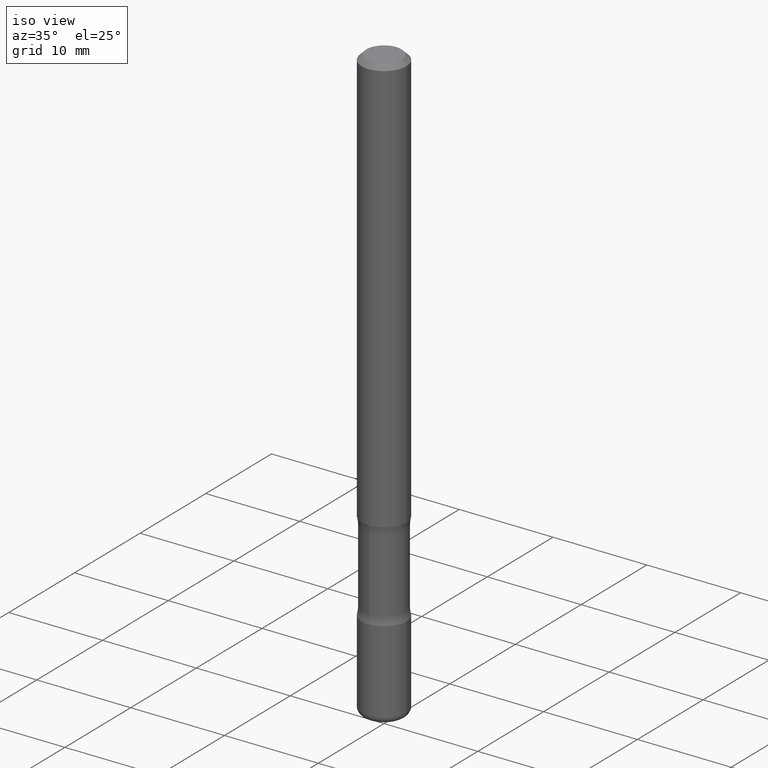
[diagram: clean part render]
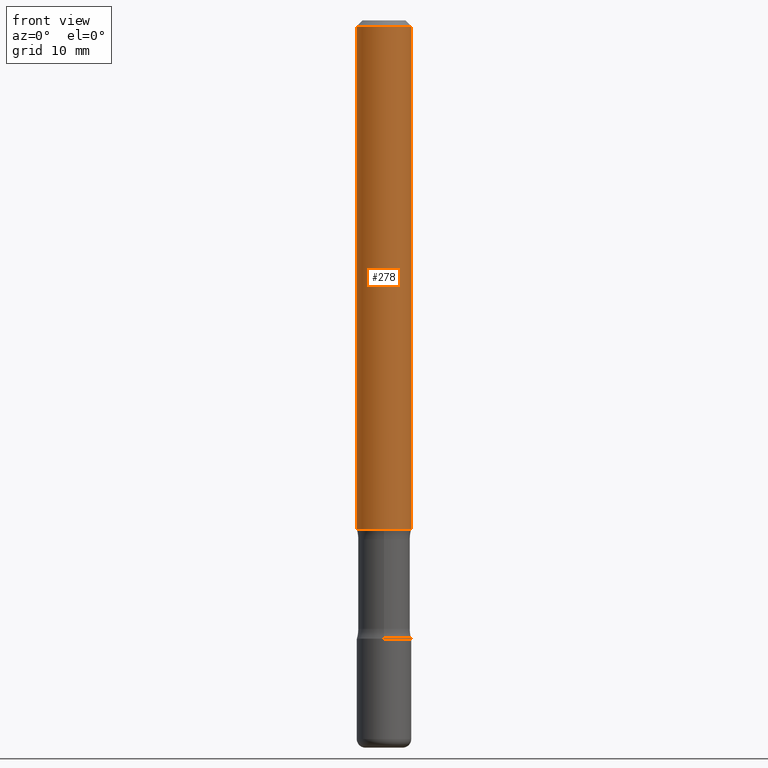
[diagram: tour spotlight — one face highlighted and labeled with its STEP entity id]
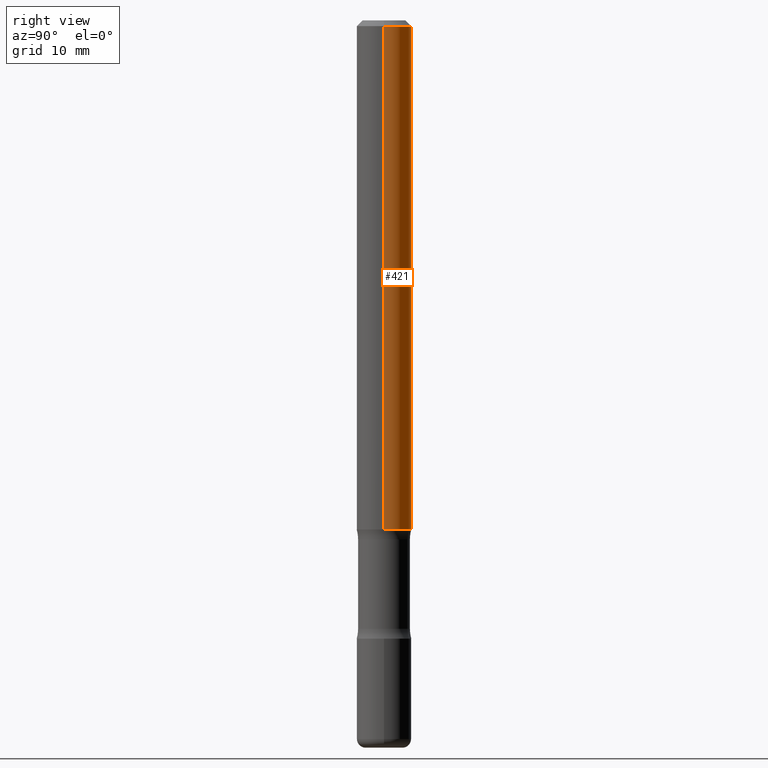
[diagram: tour spotlight — one face highlighted and labeled with its STEP entity id]
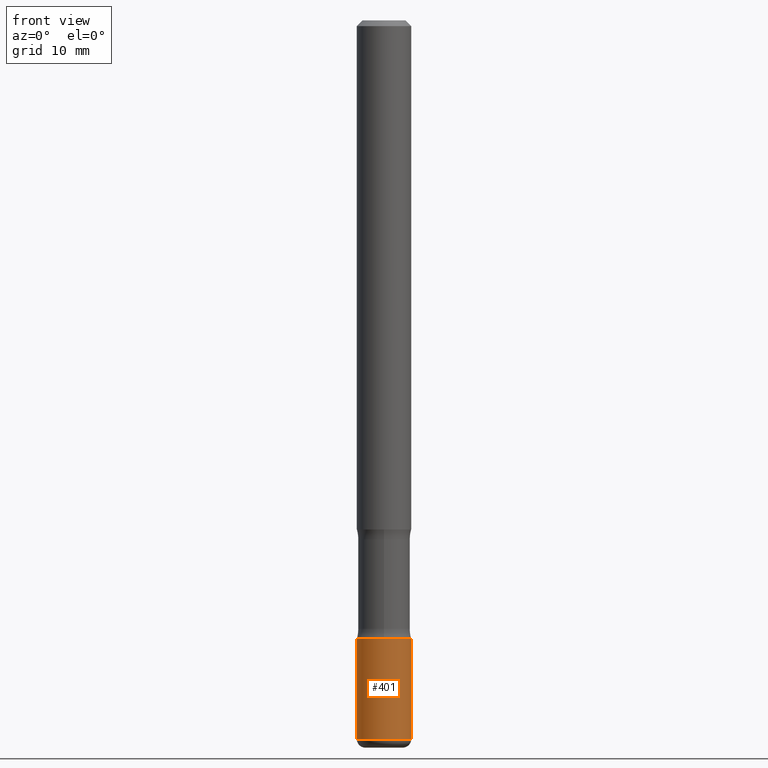
[diagram: tour spotlight — one face highlighted and labeled with its STEP entity id]
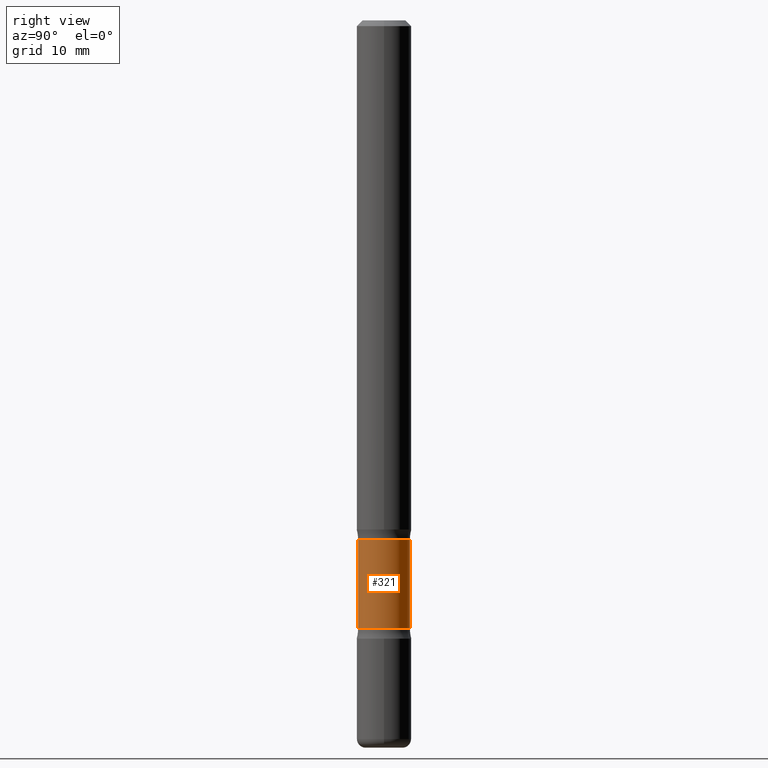
[diagram: tour spotlight — one face highlighted and labeled with its STEP entity id]
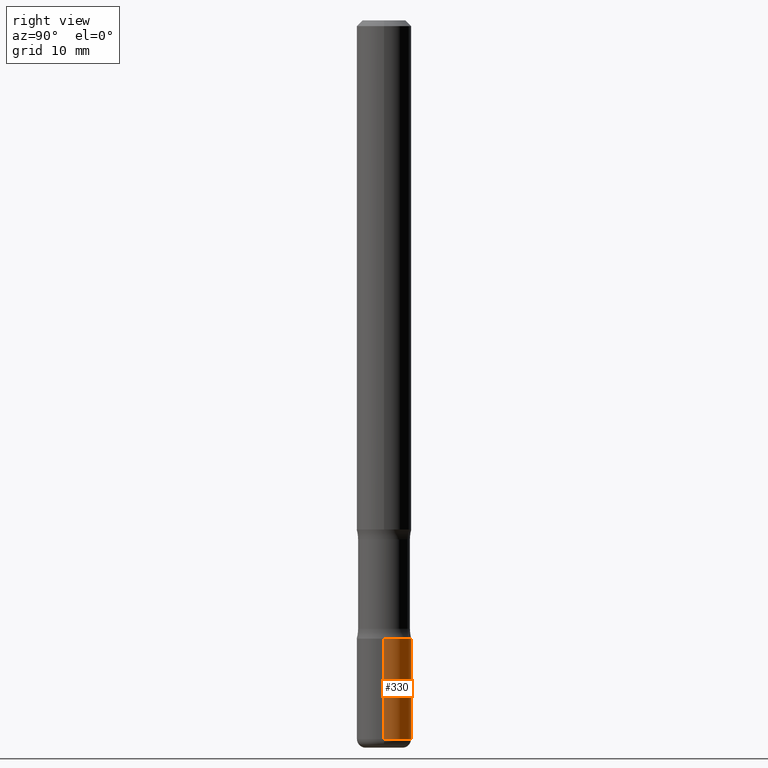
[diagram: tour spotlight — one face highlighted and labeled with its STEP entity id]
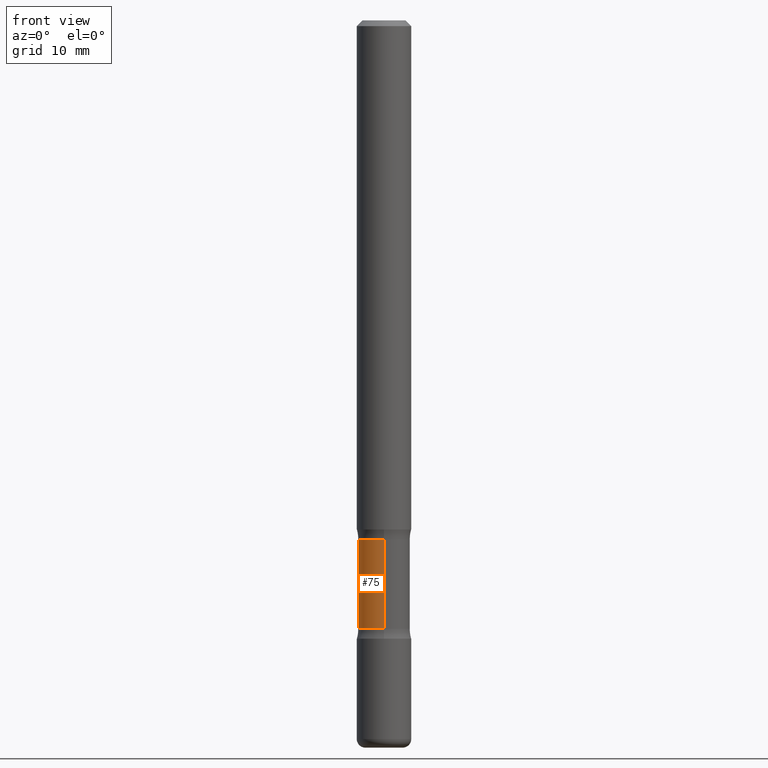
[diagram: tour spotlight — one face highlighted and labeled with its STEP entity id]
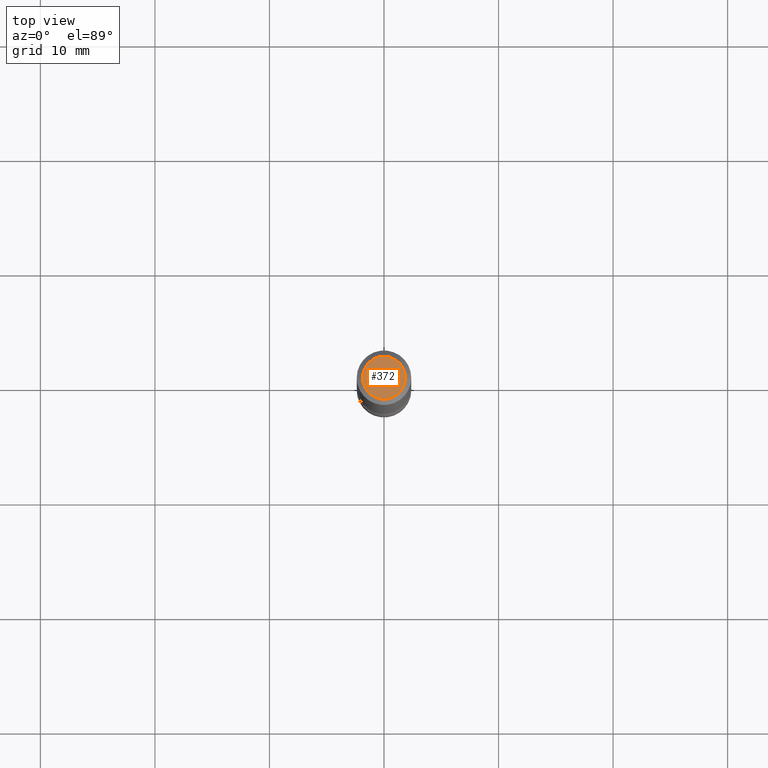
[diagram: tour spotlight — one face highlighted and labeled with its STEP entity id]
A machine part: a face-by-face anatomy tour. The part has 20 B-rep faces; the first image is the clean iso view, then the 7 largest visible faces are spotlighted one at a time (largest first), each with its STEP entity span.

Face 1 — front view, entity #278. In plain terms, the highlighted cylindrical surface (edge-blend (fillet) strip) has radius 2.3812 mm, axis along (-0, 0, 1).
Definition (entity closure, byte-faithful):
#7 = VERTEX_POINT ( 'NONE', #197 ) ;
#13 = CARTESIAN_POINT ( 'NONE',  ( -0.09374999999999981959, 5.848231242562233185E-16, -0.02000000000000001776 ) ) ;
#27 = EDGE_LOOP ( 'NONE', ( #222, #38, #517, #162 ) ) ;
#37 = CARTESIAN_POINT ( 'NONE',  ( 4.279570410823988484E-29, -6.110092342975504671E-15, -1.750000000000000000 ) ) ;
#38 = ORIENTED_EDGE ( 'NONE', *, *, #51, .T. ) ;
#51 = EDGE_CURVE ( 'NONE', #525, #7, #329, .T. ) ;
#60 = DIRECTION ( 'NONE',  ( -2.445468806185136597E-29, 3.491481338843145583E-15, 1.000000000000000000 ) ) ;
#104 = EDGE_CURVE ( 'NONE', #7, #237, #118, .T. ) ;
#118 = LINE ( 'NONE', #204, #225 ) ;
#133 = DIRECTION ( 'NONE',  ( 1.000000000000000000, -6.982962677686269866E-15, 0.000000000000000000 ) ) ;
#136 = EDGE_CURVE ( 'NONE', #483, #237, #405, .T. ) ;
#137 = CARTESIAN_POINT ( 'NONE',  ( 0.09374999999999981959, -7.130013140679428044E-16, -0.02000000000000001776 ) ) ;
#141 = FACE_OUTER_BOUND ( 'NONE', #27, .T. ) ;
#162 = ORIENTED_EDGE ( 'NONE', *, *, #136, .F. ) ;
#164 = DIRECTION ( 'NONE',  ( -2.445468806185136597E-29, 3.491481338843145583E-15, 1.000000000000000000 ) ) ;
#196 = AXIS2_PLACEMENT_3D ( 'NONE', #37, #236, #133 ) ;
#197 = CARTESIAN_POINT ( 'NONE',  ( 0.09375000000000004163, -6.764745094008592175E-15, -1.750000000000000000 ) ) ;
#204 = CARTESIAN_POINT ( 'NONE',  ( 0.09374999999999991673, -6.546527510330869125E-16, 4.571415727308685602E-30 ) ) ;
#222 = ORIENTED_EDGE ( 'NONE', *, *, #515, .F. ) ;
#223 = AXIS2_PLACEMENT_3D ( 'NONE', #512, #60, #558 ) ;
#225 = VECTOR ( 'NONE', #426, 39.37007874015748143 ) ;
#236 = DIRECTION ( 'NONE',  ( -2.445468806185136597E-29, 3.491481338843145583E-15, 1.000000000000000000 ) ) ;
#237 = VERTEX_POINT ( 'NONE', #137 ) ;
#278 = ADVANCED_FACE ( 'NONE', ( #141 ), #287, .T. ) ;
#286 = CARTESIAN_POINT ( 'NONE',  ( -0.09374999999999991673, 6.661338147750933326E-16, -4.611501647113969791E-30 ) ) ;
#287 = CYLINDRICAL_SURFACE ( 'NONE', #223, 0.09374999999999991673 ) ;
#329 = CIRCLE ( 'NONE', #196, 0.09375000000000004163 ) ;
#387 = CARTESIAN_POINT ( 'NONE',  ( -0.09375000000000004163, -2.423827170101085722E-15, -1.750000000000000000 ) ) ;
#405 = CIRCLE ( 'NONE', #509, 0.09374999999999981959 ) ;
#425 = DIRECTION ( 'NONE',  ( -2.445468806185136877E-29, 3.491481338843145188E-15, 1.000000000000000000 ) ) ;
#426 = DIRECTION ( 'NONE',  ( -2.445468806185136877E-29, 3.491481338843145188E-15, 1.000000000000000000 ) ) ;
#463 = CARTESIAN_POINT ( 'NONE',  ( 4.890937612370276662E-31, -6.982962677686296539E-17, -0.02000000000000001776 ) ) ;
#472 = LINE ( 'NONE', #286, #481 ) ;
#481 = VECTOR ( 'NONE', #425, 39.37007874015748143 ) ;
#483 = VERTEX_POINT ( 'NONE', #13 ) ;
#503 = DIRECTION ( 'NONE',  ( 1.000000000000000000, -6.982962677686267499E-15, 0.000000000000000000 ) ) ;
#509 = AXIS2_PLACEMENT_3D ( 'NONE', #463, #164, #503 ) ;
#512 = CARTESIAN_POINT ( 'NONE',  ( 0.000000000000000000, 0.000000000000000000, 0.000000000000000000 ) ) ;
#515 = EDGE_CURVE ( 'NONE', #525, #483, #472, .T. ) ;
#517 = ORIENTED_EDGE ( 'NONE', *, *, #104, .T. ) ;
#525 = VERTEX_POINT ( 'NONE', #387 ) ;
#558 = DIRECTION ( 'NONE',  ( 1.000000000000000000, -6.982962677686266711E-15, 4.876176775795935793E-29 ) ) ;

Face 2 — right view, entity #421. In plain terms, the highlighted cylindrical surface (edge-blend (fillet) strip) has radius 2.3812 mm, axis along (-0, 0, 1).
Definition (entity closure, byte-faithful):
#7 = VERTEX_POINT ( 'NONE', #197 ) ;
#13 = CARTESIAN_POINT ( 'NONE',  ( -0.09374999999999981959, 5.848231242562233185E-16, -0.02000000000000001776 ) ) ;
#21 = CIRCLE ( 'NONE', #552, 0.09374999999999981959 ) ;
#80 = DIRECTION ( 'NONE',  ( 1.000000000000000000, -6.982962677686269866E-15, 0.000000000000000000 ) ) ;
#81 = CIRCLE ( 'NONE', #403, 0.09375000000000004163 ) ;
#98 = CYLINDRICAL_SURFACE ( 'NONE', #496, 0.09374999999999991673 ) ;
#104 = EDGE_CURVE ( 'NONE', #7, #237, #118, .T. ) ;
#118 = LINE ( 'NONE', #204, #225 ) ;
#119 = DIRECTION ( 'NONE',  ( -2.445468806185136597E-29, 3.491481338843145583E-15, 1.000000000000000000 ) ) ;
#127 = ORIENTED_EDGE ( 'NONE', *, *, #488, .T. ) ;
#137 = CARTESIAN_POINT ( 'NONE',  ( 0.09374999999999981959, -7.130013140679428044E-16, -0.02000000000000001776 ) ) ;
#150 = DIRECTION ( 'NONE',  ( 1.000000000000000000, -6.982962677686267499E-15, 0.000000000000000000 ) ) ;
#197 = CARTESIAN_POINT ( 'NONE',  ( 0.09375000000000004163, -6.764745094008592175E-15, -1.750000000000000000 ) ) ;
#204 = CARTESIAN_POINT ( 'NONE',  ( 0.09374999999999991673, -6.546527510330869125E-16, 4.571415727308685602E-30 ) ) ;
#225 = VECTOR ( 'NONE', #426, 39.37007874015748143 ) ;
#237 = VERTEX_POINT ( 'NONE', #137 ) ;
#286 = CARTESIAN_POINT ( 'NONE',  ( -0.09374999999999991673, 6.661338147750933326E-16, -4.611501647113969791E-30 ) ) ;
#312 = EDGE_LOOP ( 'NONE', ( #127, #340, #363, #542 ) ) ;
#340 = ORIENTED_EDGE ( 'NONE', *, *, #515, .T. ) ;
#349 = CARTESIAN_POINT ( 'NONE',  ( 4.279570410823988484E-29, -6.110092342975504671E-15, -1.750000000000000000 ) ) ;
#362 = DIRECTION ( 'NONE',  ( -2.445468806185136597E-29, 3.491481338843145583E-15, 1.000000000000000000 ) ) ;
#363 = ORIENTED_EDGE ( 'NONE', *, *, #438, .F. ) ;
#371 = FACE_OUTER_BOUND ( 'NONE', #312, .T. ) ;
#387 = CARTESIAN_POINT ( 'NONE',  ( -0.09375000000000004163, -2.423827170101085722E-15, -1.750000000000000000 ) ) ;
#395 = DIRECTION ( 'NONE',  ( 1.000000000000000000, -6.982962677686266711E-15, 4.876176775795935793E-29 ) ) ;
#403 = AXIS2_PLACEMENT_3D ( 'NONE', #349, #119, #80 ) ;
#411 = CARTESIAN_POINT ( 'NONE',  ( 0.000000000000000000, 0.000000000000000000, 0.000000000000000000 ) ) ;
#421 = ADVANCED_FACE ( 'NONE', ( #371 ), #98, .T. ) ;
#425 = DIRECTION ( 'NONE',  ( -2.445468806185136877E-29, 3.491481338843145188E-15, 1.000000000000000000 ) ) ;
#426 = DIRECTION ( 'NONE',  ( -2.445468806185136877E-29, 3.491481338843145188E-15, 1.000000000000000000 ) ) ;
#438 = EDGE_CURVE ( 'NONE', #237, #483, #21, .T. ) ;
#472 = LINE ( 'NONE', #286, #481 ) ;
#481 = VECTOR ( 'NONE', #425, 39.37007874015748143 ) ;
#483 = VERTEX_POINT ( 'NONE', #13 ) ;
#488 = EDGE_CURVE ( 'NONE', #7, #525, #81, .T. ) ;
#490 = DIRECTION ( 'NONE',  ( -2.445468806185136597E-29, 3.491481338843145583E-15, 1.000000000000000000 ) ) ;
#496 = AXIS2_PLACEMENT_3D ( 'NONE', #411, #362, #395 ) ;
#515 = EDGE_CURVE ( 'NONE', #525, #483, #472, .T. ) ;
#525 = VERTEX_POINT ( 'NONE', #387 ) ;
#537 = CARTESIAN_POINT ( 'NONE',  ( 4.890937612370276662E-31, -6.982962677686296539E-17, -0.02000000000000001776 ) ) ;
#542 = ORIENTED_EDGE ( 'NONE', *, *, #104, .F. ) ;
#552 = AXIS2_PLACEMENT_3D ( 'NONE', #537, #490, #150 ) ;

Face 3 — front view, entity #401. In plain terms, the highlighted cylindrical surface (edge-blend (fillet) strip) has radius 2.3813 mm, axis along (-0, 0, 1).
Definition (entity closure, byte-faithful):
#1 = FACE_OUTER_BOUND ( 'NONE', #407, .T. ) ;
#32 = ORIENTED_EDGE ( 'NONE', *, *, #382, .F. ) ;
#42 = ORIENTED_EDGE ( 'NONE', *, *, #201, .T. ) ;
#43 = AXIS2_PLACEMENT_3D ( 'NONE', #431, #89, #341 ) ;
#66 = DIRECTION ( 'NONE',  ( -2.445468806185136877E-29, 3.491481338843145188E-15, 1.000000000000000000 ) ) ;
#67 = ORIENTED_EDGE ( 'NONE', *, *, #109, .F. ) ;
#79 = LINE ( 'NONE', #252, #393 ) ;
#89 = DIRECTION ( 'NONE',  ( -2.445468806185136597E-29, 3.491481338843145583E-15, 1.000000000000000000 ) ) ;
#97 = DIRECTION ( 'NONE',  ( 1.000000000000000000, -6.982962677686265922E-15, 0.000000000000000000 ) ) ;
#106 = CARTESIAN_POINT ( 'NONE',  ( -0.09374999999999994449, -7.957825092167479227E-15, -2.470000000000000639 ) ) ;
#109 = EDGE_CURVE ( 'NONE', #322, #217, #79, .T. ) ;
#130 = AXIS2_PLACEMENT_3D ( 'NONE', #216, #396, #97 ) ;
#149 = DIRECTION ( 'NONE',  ( -2.445468806185136597E-29, 3.491481338843145583E-15, 1.000000000000000000 ) ) ;
#154 = ORIENTED_EDGE ( 'NONE', *, *, #375, .T. ) ;
#171 = CARTESIAN_POINT ( 'NONE',  ( 0.09375000000000005551, -6.546527510330878985E-16, 4.571415727308692608E-30 ) ) ;
#174 = CARTESIAN_POINT ( 'NONE',  ( -0.09375000000000002776, -7.355544561217034463E-15, -2.125000000000000000 ) ) ;
#199 = AXIS2_PLACEMENT_3D ( 'NONE', #357, #149, #534 ) ;
#201 = EDGE_CURVE ( 'NONE', #495, #246, #290, .T. ) ;
#211 = DIRECTION ( 'NONE',  ( -2.445468806185136877E-29, 3.491481338843145188E-15, 1.000000000000000000 ) ) ;
#212 = CIRCLE ( 'NONE', #130, 0.09375000000000009714 ) ;
#216 = CARTESIAN_POINT ( 'NONE',  ( 6.040307951277289098E-29, -8.623958906942573151E-15, -2.470000000000000639 ) ) ;
#217 = VERTEX_POINT ( 'NONE', #174 ) ;
#246 = VERTEX_POINT ( 'NONE', #388 ) ;
#252 = CARTESIAN_POINT ( 'NONE',  ( -0.09375000000000005551, 6.661338147750943187E-16, -4.611501647113976798E-30 ) ) ;
#290 = LINE ( 'NONE', #171, #352 ) ;
#322 = VERTEX_POINT ( 'NONE', #106 ) ;
#341 = DIRECTION ( 'NONE',  ( 1.000000000000000000, -6.982962677686266711E-15, 4.876176775795935793E-29 ) ) ;
#352 = VECTOR ( 'NONE', #66, 39.37007874015748143 ) ;
#357 = CARTESIAN_POINT ( 'NONE',  ( 5.196621213143415268E-29, -7.419397845041685201E-15, -2.125000000000000000 ) ) ;
#375 = EDGE_CURVE ( 'NONE', #322, #495, #212, .T. ) ;
#382 = EDGE_CURVE ( 'NONE', #217, #246, #452, .T. ) ;
#388 = CARTESIAN_POINT ( 'NONE',  ( 0.09375000000000002776, -8.074050596074771916E-15, -2.125000000000000000 ) ) ;
#393 = VECTOR ( 'NONE', #211, 39.37007874015748143 ) ;
#396 = DIRECTION ( 'NONE',  ( -2.445468806185136597E-29, 3.491481338843145583E-15, 1.000000000000000000 ) ) ;
#401 = ADVANCED_FACE ( 'NONE', ( #1 ), #518, .T. ) ;
#407 = EDGE_LOOP ( 'NONE', ( #67, #154, #42, #32 ) ) ;
#431 = CARTESIAN_POINT ( 'NONE',  ( 0.000000000000000000, 0.000000000000000000, 0.000000000000000000 ) ) ;
#452 = CIRCLE ( 'NONE', #199, 0.09375000000000002776 ) ;
#495 = VERTEX_POINT ( 'NONE', #507 ) ;
#507 = CARTESIAN_POINT ( 'NONE',  ( 0.09374999999999994449, -9.278611657975658288E-15, -2.470000000000000639 ) ) ;
#518 = CYLINDRICAL_SURFACE ( 'NONE', #43, 0.09375000000000005551 ) ;
#534 = DIRECTION ( 'NONE',  ( 1.000000000000000000, -6.982962677686270655E-15, 0.000000000000000000 ) ) ;

Face 4 — right view, entity #321. In plain terms, the highlighted cylindrical surface (edge-blend (fillet) strip) has radius 2.2622 mm, axis along (0, -0, -1).
Definition (entity closure, byte-faithful):
#9 = DIRECTION ( 'NONE',  ( 6.982962677686265133E-15, 1.000000000000000000, -6.134676196298701332E-15 ) ) ;
#16 = DIRECTION ( 'NONE',  ( 2.553476385947133355E-29, -3.336808337214295667E-15, -1.000000000000000000 ) ) ;
#34 = EDGE_LOOP ( 'NONE', ( #456, #471, #324, #356 ) ) ;
#69 = VERTEX_POINT ( 'NONE', #298 ) ;
#78 = CARTESIAN_POINT ( 'NONE',  ( 5.110032292609207884E-29, -7.306245973522905960E-15, -2.091089789977795821 ) ) ;
#87 = FACE_OUTER_BOUND ( 'NONE', #34, .T. ) ;
#91 = AXIS2_PLACEMENT_3D ( 'NONE', #410, #16, #317 ) ;
#96 = CARTESIAN_POINT ( 'NONE',  ( 6.219201134814836160E-16, 0.08906249999999261979, -2.091089789977795821 ) ) ;
#173 = CARTESIAN_POINT ( 'NONE',  ( -6.270923951087611034E-16, -0.08906250000000623390, -1.783910210022204401 ) ) ;
#178 = CIRCLE ( 'NONE', #91, 0.08906249999999994726 ) ;
#180 = CARTESIAN_POINT ( 'NONE',  ( 6.154174857873591467E-29, -8.670700971497045879E-15, -2.500000000000000000 ) ) ;
#206 = LINE ( 'NONE', #383, #323 ) ;
#228 = DIRECTION ( 'NONE',  ( 2.553476385947133355E-29, -3.336808337214295667E-15, -1.000000000000000000 ) ) ;
#233 = DIRECTION ( 'NONE',  ( 2.553476385947133355E-29, -3.336808337214295667E-15, -1.000000000000000000 ) ) ;
#239 = VERTEX_POINT ( 'NONE', #96 ) ;
#240 = CARTESIAN_POINT ( 'NONE',  ( -6.110131029264649859E-16, -0.08906250000000860700, -2.499999999999999556 ) ) ;
#298 = CARTESIAN_POINT ( 'NONE',  ( -6.270923951087521301E-16, -0.08906250000000723310, -2.091089789977795377 ) ) ;
#301 = EDGE_CURVE ( 'NONE', #239, #69, #350, .T. ) ;
#317 = DIRECTION ( 'NONE',  ( 6.982962677686265133E-15, 1.000000000000000000, -3.067338098149349877E-15 ) ) ;
#318 = VERTEX_POINT ( 'NONE', #521 ) ;
#321 = ADVANCED_FACE ( 'NONE', ( #87 ), #440, .T. ) ;
#323 = VECTOR ( 'NONE', #334, 39.37007874015748143 ) ;
#324 = ORIENTED_EDGE ( 'NONE', *, *, #301, .F. ) ;
#334 = DIRECTION ( 'NONE',  ( 2.553476385947133355E-29, -3.336808337214295667E-15, -1.000000000000000000 ) ) ;
#343 = AXIS2_PLACEMENT_3D ( 'NONE', #78, #233, #516 ) ;
#350 = CIRCLE ( 'NONE', #343, 0.08906249999999993339 ) ;
#356 = ORIENTED_EDGE ( 'NONE', *, *, #470, .F. ) ;
#364 = EDGE_CURVE ( 'NONE', #318, #499, #178, .T. ) ;
#374 = DIRECTION ( 'NONE',  ( 2.553476385947133355E-29, -3.336808337214295667E-15, -1.000000000000000000 ) ) ;
#377 = AXIS2_PLACEMENT_3D ( 'NONE', #180, #228, #9 ) ;
#383 = CARTESIAN_POINT ( 'NONE',  ( 6.219201134814940684E-16, 0.08906249999999125977, -2.500000000000000444 ) ) ;
#390 = LINE ( 'NONE', #240, #475 ) ;
#410 = CARTESIAN_POINT ( 'NONE',  ( 4.325656488947447574E-29, -6.281246590105103764E-15, -1.783910210022204623 ) ) ;
#418 = EDGE_CURVE ( 'NONE', #499, #69, #390, .T. ) ;
#440 = CYLINDRICAL_SURFACE ( 'NONE', #377, 0.08906249999999993339 ) ;
#456 = ORIENTED_EDGE ( 'NONE', *, *, #364, .T. ) ;
#470 = EDGE_CURVE ( 'NONE', #318, #239, #206, .T. ) ;
#471 = ORIENTED_EDGE ( 'NONE', *, *, #418, .T. ) ;
#475 = VECTOR ( 'NONE', #374, 39.37007874015748143 ) ;
#499 = VERTEX_POINT ( 'NONE', #173 ) ;
#516 = DIRECTION ( 'NONE',  ( 6.982962677686265133E-15, 1.000000000000000000, -3.067338098149350666E-15 ) ) ;
#521 = CARTESIAN_POINT ( 'NONE',  ( 6.219201134814759246E-16, 0.08906249999999366063, -1.783910210022204845 ) ) ;

Face 5 — right view, entity #330. In plain terms, the highlighted cylindrical surface (edge-blend (fillet) strip) has radius 2.3813 mm, axis along (-0, 0, 1).
Definition (entity closure, byte-faithful):
#20 = CARTESIAN_POINT ( 'NONE',  ( 0.000000000000000000, 0.000000000000000000, 0.000000000000000000 ) ) ;
#40 = AXIS2_PLACEMENT_3D ( 'NONE', #20, #192, #190 ) ;
#58 = DIRECTION ( 'NONE',  ( 1.000000000000000000, -6.982962677686265922E-15, 0.000000000000000000 ) ) ;
#66 = DIRECTION ( 'NONE',  ( -2.445468806185136877E-29, 3.491481338843145188E-15, 1.000000000000000000 ) ) ;
#77 = EDGE_CURVE ( 'NONE', #246, #217, #546, .T. ) ;
#79 = LINE ( 'NONE', #252, #393 ) ;
#102 = CARTESIAN_POINT ( 'NONE',  ( 6.040307951277289098E-29, -8.623958906942573151E-15, -2.470000000000000639 ) ) ;
#106 = CARTESIAN_POINT ( 'NONE',  ( -0.09374999999999994449, -7.957825092167479227E-15, -2.470000000000000639 ) ) ;
#109 = EDGE_CURVE ( 'NONE', #322, #217, #79, .T. ) ;
#151 = FACE_OUTER_BOUND ( 'NONE', #422, .T. ) ;
#171 = CARTESIAN_POINT ( 'NONE',  ( 0.09375000000000005551, -6.546527510330878985E-16, 4.571415727308692608E-30 ) ) ;
#174 = CARTESIAN_POINT ( 'NONE',  ( -0.09375000000000002776, -7.355544561217034463E-15, -2.125000000000000000 ) ) ;
#190 = DIRECTION ( 'NONE',  ( 1.000000000000000000, -6.982962677686266711E-15, 4.876176775795935793E-29 ) ) ;
#192 = DIRECTION ( 'NONE',  ( -2.445468806185136597E-29, 3.491481338843145583E-15, 1.000000000000000000 ) ) ;
#193 = ORIENTED_EDGE ( 'NONE', *, *, #201, .F. ) ;
#201 = EDGE_CURVE ( 'NONE', #495, #246, #290, .T. ) ;
#203 = CARTESIAN_POINT ( 'NONE',  ( 5.196621213143415268E-29, -7.419397845041685201E-15, -2.125000000000000000 ) ) ;
#211 = DIRECTION ( 'NONE',  ( -2.445468806185136877E-29, 3.491481338843145188E-15, 1.000000000000000000 ) ) ;
#217 = VERTEX_POINT ( 'NONE', #174 ) ;
#246 = VERTEX_POINT ( 'NONE', #388 ) ;
#252 = CARTESIAN_POINT ( 'NONE',  ( -0.09375000000000005551, 6.661338147750943187E-16, -4.611501647113976798E-30 ) ) ;
#290 = LINE ( 'NONE', #171, #352 ) ;
#322 = VERTEX_POINT ( 'NONE', #106 ) ;
#330 = ADVANCED_FACE ( 'NONE', ( #151 ), #460, .T. ) ;
#332 = DIRECTION ( 'NONE',  ( 1.000000000000000000, -6.982962677686270655E-15, 0.000000000000000000 ) ) ;
#345 = EDGE_CURVE ( 'NONE', #495, #322, #430, .T. ) ;
#352 = VECTOR ( 'NONE', #66, 39.37007874015748143 ) ;
#388 = CARTESIAN_POINT ( 'NONE',  ( 0.09375000000000002776, -8.074050596074771916E-15, -2.125000000000000000 ) ) ;
#393 = VECTOR ( 'NONE', #211, 39.37007874015748143 ) ;
#404 = ORIENTED_EDGE ( 'NONE', *, *, #345, .T. ) ;
#415 = AXIS2_PLACEMENT_3D ( 'NONE', #203, #506, #332 ) ;
#422 = EDGE_LOOP ( 'NONE', ( #404, #559, #543, #193 ) ) ;
#430 = CIRCLE ( 'NONE', #467, 0.09375000000000009714 ) ;
#457 = DIRECTION ( 'NONE',  ( -2.445468806185136597E-29, 3.491481338843145583E-15, 1.000000000000000000 ) ) ;
#460 = CYLINDRICAL_SURFACE ( 'NONE', #40, 0.09375000000000005551 ) ;
#467 = AXIS2_PLACEMENT_3D ( 'NONE', #102, #457, #58 ) ;
#495 = VERTEX_POINT ( 'NONE', #507 ) ;
#506 = DIRECTION ( 'NONE',  ( -2.445468806185136597E-29, 3.491481338843145583E-15, 1.000000000000000000 ) ) ;
#507 = CARTESIAN_POINT ( 'NONE',  ( 0.09374999999999994449, -9.278611657975658288E-15, -2.470000000000000639 ) ) ;
#543 = ORIENTED_EDGE ( 'NONE', *, *, #77, .F. ) ;
#546 = CIRCLE ( 'NONE', #415, 0.09375000000000002776 ) ;
#559 = ORIENTED_EDGE ( 'NONE', *, *, #109, .T. ) ;

Face 6 — front view, entity #75. In plain terms, the highlighted cylindrical surface (edge-blend (fillet) strip) has radius 2.2622 mm, axis along (0, -0, -1).
Definition (entity closure, byte-faithful):
#17 = EDGE_LOOP ( 'NONE', ( #302, #115, #65, #373 ) ) ;
#35 = CARTESIAN_POINT ( 'NONE',  ( 6.154174857873591467E-29, -8.670700971497045879E-15, -2.500000000000000000 ) ) ;
#41 = CIRCLE ( 'NONE', #455, 0.08906249999999993339 ) ;
#63 = DIRECTION ( 'NONE',  ( 6.982962677686265133E-15, 1.000000000000000000, -3.067338098149350666E-15 ) ) ;
#65 = ORIENTED_EDGE ( 'NONE', *, *, #470, .T. ) ;
#69 = VERTEX_POINT ( 'NONE', #298 ) ;
#75 = ADVANCED_FACE ( 'NONE', ( #247 ), #165, .T. ) ;
#96 = CARTESIAN_POINT ( 'NONE',  ( 6.219201134814836160E-16, 0.08906249999999261979, -2.091089789977795821 ) ) ;
#108 = DIRECTION ( 'NONE',  ( 2.553476385947133355E-29, -3.336808337214295667E-15, -1.000000000000000000 ) ) ;
#115 = ORIENTED_EDGE ( 'NONE', *, *, #227, .T. ) ;
#117 = CARTESIAN_POINT ( 'NONE',  ( 4.325656488947447574E-29, -6.281246590105103764E-15, -1.783910210022204623 ) ) ;
#142 = EDGE_CURVE ( 'NONE', #69, #239, #41, .T. ) ;
#165 = CYLINDRICAL_SURFACE ( 'NONE', #478, 0.08906249999999993339 ) ;
#173 = CARTESIAN_POINT ( 'NONE',  ( -6.270923951087611034E-16, -0.08906250000000623390, -1.783910210022204401 ) ) ;
#206 = LINE ( 'NONE', #383, #323 ) ;
#213 = AXIS2_PLACEMENT_3D ( 'NONE', #117, #436, #342 ) ;
#227 = EDGE_CURVE ( 'NONE', #499, #318, #433, .T. ) ;
#239 = VERTEX_POINT ( 'NONE', #96 ) ;
#240 = CARTESIAN_POINT ( 'NONE',  ( -6.110131029264649859E-16, -0.08906250000000860700, -2.499999999999999556 ) ) ;
#247 = FACE_OUTER_BOUND ( 'NONE', #17, .T. ) ;
#249 = DIRECTION ( 'NONE',  ( 2.553476385947133355E-29, -3.336808337214295667E-15, -1.000000000000000000 ) ) ;
#298 = CARTESIAN_POINT ( 'NONE',  ( -6.270923951087521301E-16, -0.08906250000000723310, -2.091089789977795377 ) ) ;
#302 = ORIENTED_EDGE ( 'NONE', *, *, #418, .F. ) ;
#318 = VERTEX_POINT ( 'NONE', #521 ) ;
#323 = VECTOR ( 'NONE', #334, 39.37007874015748143 ) ;
#334 = DIRECTION ( 'NONE',  ( 2.553476385947133355E-29, -3.336808337214295667E-15, -1.000000000000000000 ) ) ;
#342 = DIRECTION ( 'NONE',  ( 6.982962677686265133E-15, 1.000000000000000000, -3.067338098149349877E-15 ) ) ;
#373 = ORIENTED_EDGE ( 'NONE', *, *, #142, .F. ) ;
#374 = DIRECTION ( 'NONE',  ( 2.553476385947133355E-29, -3.336808337214295667E-15, -1.000000000000000000 ) ) ;
#383 = CARTESIAN_POINT ( 'NONE',  ( 6.219201134814940684E-16, 0.08906249999999125977, -2.500000000000000444 ) ) ;
#390 = LINE ( 'NONE', #240, #475 ) ;
#418 = EDGE_CURVE ( 'NONE', #499, #69, #390, .T. ) ;
#433 = CIRCLE ( 'NONE', #213, 0.08906249999999994726 ) ;
#436 = DIRECTION ( 'NONE',  ( 2.553476385947133355E-29, -3.336808337214295667E-15, -1.000000000000000000 ) ) ;
#455 = AXIS2_PLACEMENT_3D ( 'NONE', #492, #108, #63 ) ;
#470 = EDGE_CURVE ( 'NONE', #318, #239, #206, .T. ) ;
#475 = VECTOR ( 'NONE', #374, 39.37007874015748143 ) ;
#478 = AXIS2_PLACEMENT_3D ( 'NONE', #35, #249, #550 ) ;
#492 = CARTESIAN_POINT ( 'NONE',  ( 5.110032292609207884E-29, -7.306245973522905960E-15, -2.091089789977795821 ) ) ;
#499 = VERTEX_POINT ( 'NONE', #173 ) ;
#521 = CARTESIAN_POINT ( 'NONE',  ( 6.219201134814759246E-16, 0.08906249999999366063, -1.783910210022204845 ) ) ;
#550 = DIRECTION ( 'NONE',  ( 6.982962677686265133E-15, 1.000000000000000000, -6.134676196298701332E-15 ) ) ;

Face 7 — top view, entity #372. In plain terms, the highlighted planar face has unit normal (0, -0, -1).
Definition (entity closure, byte-faithful):
#5 = CIRCLE ( 'NONE', #113, 0.07374999999999984346 ) ;
#48 = CIRCLE ( 'NONE', #498, 0.07374999999999984346 ) ;
#52 = DIRECTION ( 'NONE',  ( -2.445468806185136597E-29, 3.491481338843145583E-15, 1.000000000000000000 ) ) ;
#53 = AXIS2_PLACEMENT_3D ( 'NONE', #306, #366, #446 ) ;
#59 = DIRECTION ( 'NONE',  ( -2.445468806185136597E-29, 3.491481338843145583E-15, 1.000000000000000000 ) ) ;
#113 = AXIS2_PLACEMENT_3D ( 'NONE', #235, #59, #232 ) ;
#124 = CARTESIAN_POINT ( 'NONE',  ( -0.07374999999999984346, 5.499083108677921624E-16, -3.723527850031186263E-30 ) ) ;
#126 = VERTEX_POINT ( 'NONE', #400 ) ;
#145 = DIRECTION ( 'NONE',  ( 1.000000000000000000, -6.982962677686266711E-15, 4.876176775795935793E-29 ) ) ;
#148 = EDGE_LOOP ( 'NONE', ( #500, #484 ) ) ;
#229 = FACE_OUTER_BOUND ( 'NONE', #148, .T. ) ;
#232 = DIRECTION ( 'NONE',  ( 1.000000000000000000, -6.982962677686266711E-15, 4.876176775795935793E-29 ) ) ;
#235 = CARTESIAN_POINT ( 'NONE',  ( 0.000000000000000000, 0.000000000000000000, 0.000000000000000000 ) ) ;
#266 = CARTESIAN_POINT ( 'NONE',  ( 0.000000000000000000, 0.000000000000000000, 0.000000000000000000 ) ) ;
#306 = CARTESIAN_POINT ( 'NONE',  ( 5.149934974793610063E-16, 0.07374999999999984346, -2.574967487396814399E-16 ) ) ;
#366 = DIRECTION ( 'NONE',  ( 2.438088387897960049E-29, -3.491481338843145188E-15, -1.000000000000000000 ) ) ;
#372 = ADVANCED_FACE ( 'NONE', ( #229 ), #529, .F. ) ;
#380 = EDGE_CURVE ( 'NONE', #126, #399, #48, .T. ) ;
#399 = VERTEX_POINT ( 'NONE', #124 ) ;
#400 = CARTESIAN_POINT ( 'NONE',  ( 0.07374999999999984346, -6.094815207017961198E-16, 3.931526600461598749E-30 ) ) ;
#420 = EDGE_CURVE ( 'NONE', #399, #126, #5, .T. ) ;
#446 = DIRECTION ( 'NONE',  ( -1.000000000000000000, 6.982962677686265922E-15, -4.876176775795935793E-29 ) ) ;
#484 = ORIENTED_EDGE ( 'NONE', *, *, #380, .T. ) ;
#498 = AXIS2_PLACEMENT_3D ( 'NONE', #266, #52, #145 ) ;
#500 = ORIENTED_EDGE ( 'NONE', *, *, #420, .T. ) ;
#529 = PLANE ( 'NONE',  #53 ) ;